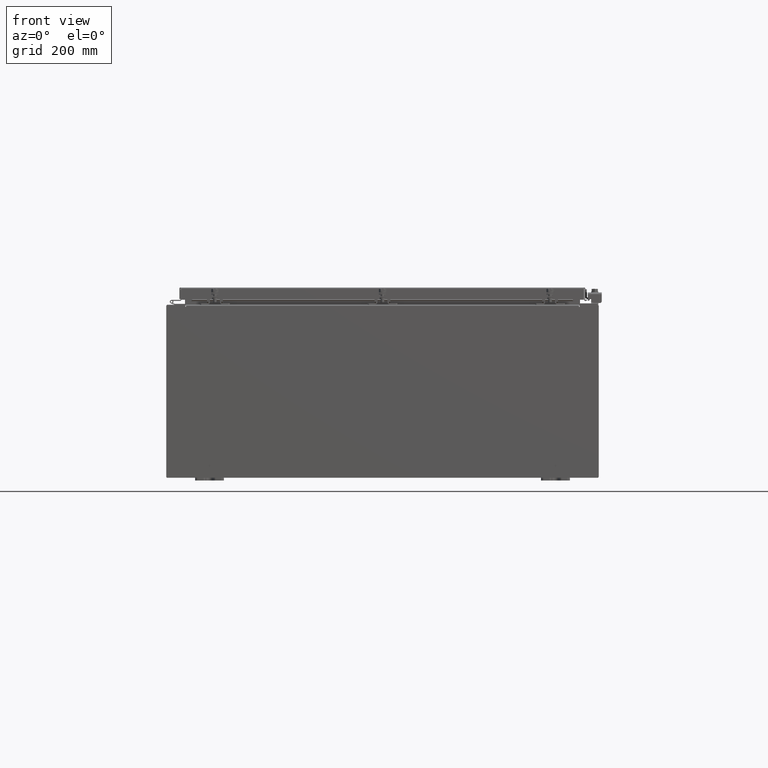
[diagram: clean part render]
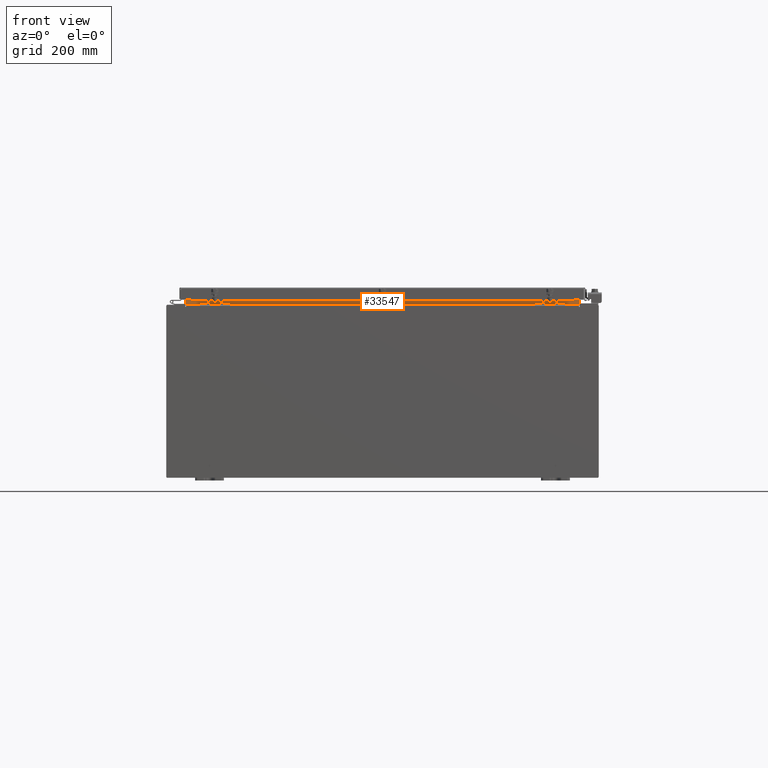
[diagram: same view with one face highlighted and labeled with its STEP entity id]
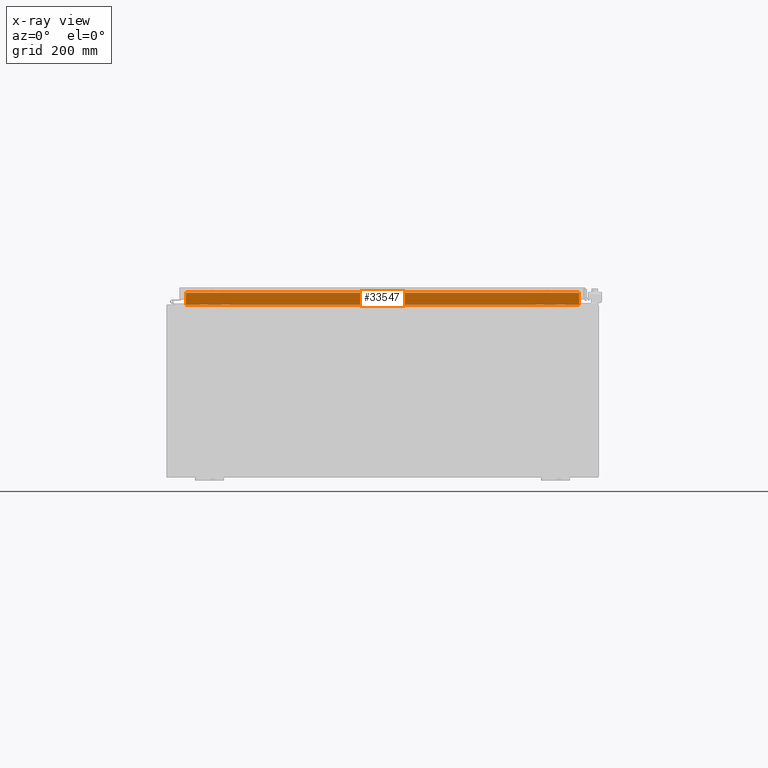
[diagram: x-ray of the same camera — body ghosted, the highlighted face saturated]
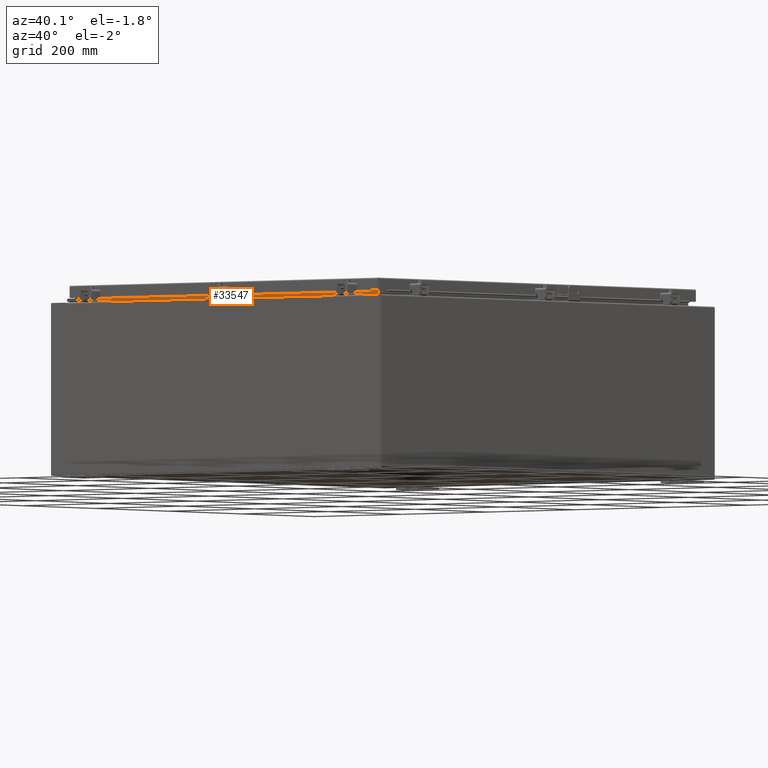
[diagram: same view with one face highlighted and labeled with its STEP entity id]
A machine part, front view. The second image highlights one B-rep face of the part: STEP entity #33547.
The next image is the same camera in x-ray: the body ghosted, the highlighted face saturated — about 0% of this face is hidden behind the body in this view.
A second angle (auxiliary view) of the same face is appended — the face is thin or edge-on in the first view.
In plain terms, the highlighted planar face has unit normal (0, -1, 0).
Its self-contained STEP definition (entity closure, byte-faithful):
#2946 = EDGE_CURVE ( 'NONE', #38859, #24909, #7456, .T. ) ;
#5237 = VERTEX_POINT ( 'NONE', #22172 ) ;
#6104 = CARTESIAN_POINT ( 'NONE',  ( 13.63720000000000400, -1.300299999999999800, 6.837600000000003700 ) ) ;
#6313 = CARTESIAN_POINT ( 'NONE',  ( -13.63719999999999800, -1.300300000000000200, 6.837600000000003700 ) ) ;
#7456 = LINE ( 'NONE', #12912, #22976 ) ;
#8322 = EDGE_CURVE ( 'NONE', #28514, #5237, #43037, .T. ) ;
#10406 = CARTESIAN_POINT ( 'NONE',  ( 13.63720000000000000, -1.300299999999999800, 6.013000000000003500 ) ) ;
#10843 = DIRECTION ( 'NONE',  ( 1.000000000000000000, 0.0000000000000000000, -4.006464660875052000E-017 ) ) ;
#10979 = CARTESIAN_POINT ( 'NONE',  ( -13.63719999999999800, -1.300299999999999800, 6.013000000000003500 ) ) ;
#12145 = LINE ( 'NONE', #10979, #38634 ) ;
#12217 = EDGE_CURVE ( 'NONE', #24909, #28514, #22843, .T. ) ;
#12875 = DIRECTION ( 'NONE',  ( -0.0000000000000000000, -0.0000000000000000000, 1.000000000000000000 ) ) ;
#12912 = CARTESIAN_POINT ( 'NONE',  ( 13.63720000000000400, -1.300299999999999800, 6.925300000000003600 ) ) ;
#13697 = DIRECTION ( 'NONE',  ( -1.000000000000000000, -0.0000000000000000000, -0.0000000000000000000 ) ) ;
#13742 = CARTESIAN_POINT ( 'NONE',  ( 13.63720000000000400, -1.300300000000000200, 6.837600000000003700 ) ) ;
#15446 = FACE_OUTER_BOUND ( 'NONE', #26668, .T. ) ;
#15978 = DIRECTION ( 'NONE',  ( 0.0000000000000000000, 1.000000000000000000, 0.0000000000000000000 ) ) ;
#17444 = EDGE_CURVE ( 'NONE', #5237, #38859, #12145, .T. ) ;
#17490 = VECTOR ( 'NONE', #31286, 39.37007874015748100 ) ;
#20985 = AXIS2_PLACEMENT_3D ( 'NONE', #35728, #15978, #39240 ) ;
#22157 = ORIENTED_EDGE ( 'NONE', *, *, #8322, .F. ) ;
#22172 = CARTESIAN_POINT ( 'NONE',  ( -13.63719999999999800, -1.300299999999999800, 6.013000000000003500 ) ) ;
#22827 = ORIENTED_EDGE ( 'NONE', *, *, #12217, .F. ) ;
#22843 = LINE ( 'NONE', #13742, #39553 ) ;
#22976 = VECTOR ( 'NONE', #12875, 39.37007874015748100 ) ;
#24909 = VERTEX_POINT ( 'NONE', #6104 ) ;
#25849 = ORIENTED_EDGE ( 'NONE', *, *, #2946, .F. ) ;
#26668 = EDGE_LOOP ( 'NONE', ( #22157, #22827, #25849, #26828 ) ) ;
#26828 = ORIENTED_EDGE ( 'NONE', *, *, #17444, .F. ) ;
#28514 = VERTEX_POINT ( 'NONE', #6313 ) ;
#31286 = DIRECTION ( 'NONE',  ( -0.0000000000000000000, -0.0000000000000000000, -1.000000000000000000 ) ) ;
#31439 = CARTESIAN_POINT ( 'NONE',  ( -13.63719999999999800, -1.300299999999999800, 6.000000000000003600 ) ) ;
#32521 = PLANE ( 'NONE',  #20985 ) ;
#33547 = ADVANCED_FACE ( 'NONE', ( #15446 ), #32521, .T. ) ;
#35728 = CARTESIAN_POINT ( 'NONE',  ( 0.0000000000000000000, -1.300299999999999800, 0.0000000000000000000 ) ) ;
#38634 = VECTOR ( 'NONE', #10843, 39.37007874015748100 ) ;
#38859 = VERTEX_POINT ( 'NONE', #10406 ) ;
#39240 = DIRECTION ( 'NONE',  ( 0.0000000000000000000, -0.0000000000000000000, 1.000000000000000000 ) ) ;
#39553 = VECTOR ( 'NONE', #13697, 39.37007874015748100 ) ;
#43037 = LINE ( 'NONE', #31439, #17490 ) ;